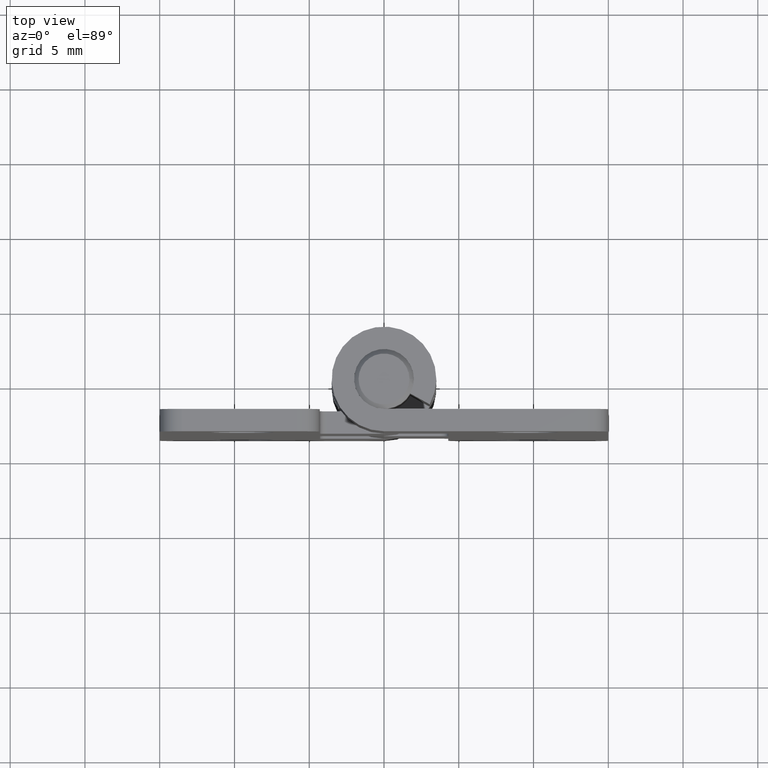
[diagram: clean part render]
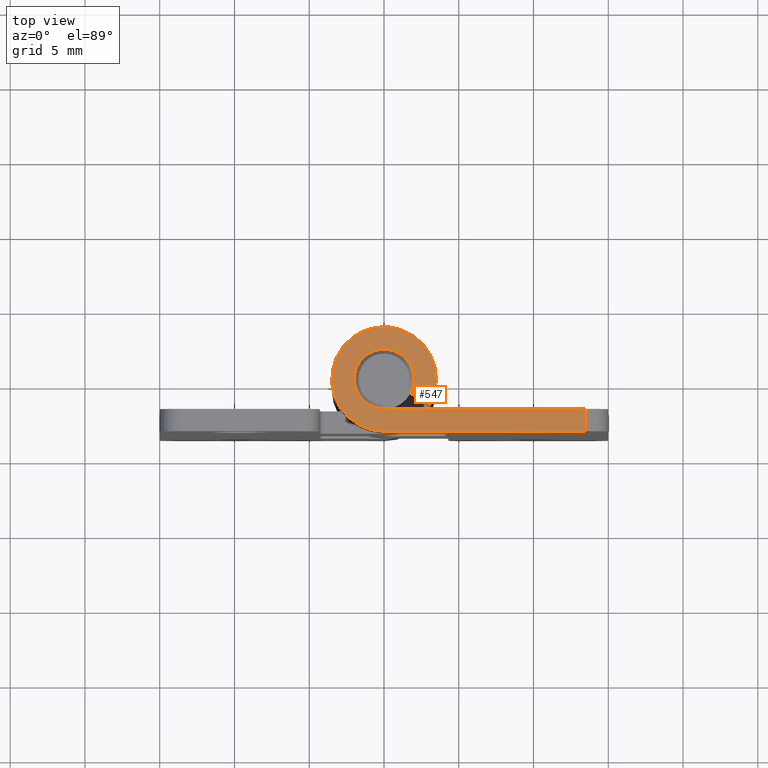
[diagram: same view with one face highlighted and labeled with its STEP entity id]
A machine part, top view. The second image highlights one B-rep face of the part: STEP entity #547.
In plain terms, the highlighted planar face has unit normal (0, 0, 1).
Its self-contained STEP definition (entity closure, byte-faithful):
#63=PLANE('',#607);
#91=FACE_OUTER_BOUND('',#130,.T.);
#130=EDGE_LOOP('',(#495,#496,#497,#498,#499,#500));
#162=LINE('',#870,#202);
#164=LINE('',#882,#204);
#173=LINE('',#910,#213);
#177=LINE('',#931,#217);
#202=VECTOR('',#689,13.5);
#204=VECTOR('',#701,1.5);
#213=VECTOR('',#732,1.5);
#217=VECTOR('',#762,13.5);
#239=CIRCLE('',#591,3.5);
#240=CIRCLE('',#595,2.);
#276=VERTEX_POINT('',#867);
#277=VERTEX_POINT('',#869);
#282=VERTEX_POINT('',#881);
#288=VERTEX_POINT('',#903);
#289=VERTEX_POINT('',#905);
#290=VERTEX_POINT('',#909);
#334=EDGE_CURVE('',#277,#276,#162,.T.);
#340=EDGE_CURVE('',#277,#282,#164,.T.);
#352=EDGE_CURVE('',#289,#288,#239,.T.);
#354=EDGE_CURVE('',#290,#289,#173,.T.);
#358=EDGE_CURVE('',#276,#290,#240,.T.);
#363=EDGE_CURVE('',#288,#282,#177,.T.);
#495=ORIENTED_EDGE('',*,*,#340,.F.);
#496=ORIENTED_EDGE('',*,*,#334,.T.);
#497=ORIENTED_EDGE('',*,*,#358,.T.);
#498=ORIENTED_EDGE('',*,*,#354,.T.);
#499=ORIENTED_EDGE('',*,*,#352,.T.);
#500=ORIENTED_EDGE('',*,*,#363,.T.);
#547=ADVANCED_FACE('',(#91),#63,.T.);
#591=AXIS2_PLACEMENT_3D('',#906,#727,#728);
#595=AXIS2_PLACEMENT_3D('',#916,#740,#741);
#607=AXIS2_PLACEMENT_3D('',#934,#766,#767);
#689=DIRECTION('',(-1.,-2.40548322002117E-16,0.));
#701=DIRECTION('',(0.,-1.,0.));
#727=DIRECTION('center_axis',(0.,0.,1.));
#728=DIRECTION('ref_axis',(0.87411763090162,-0.485714285714286,0.));
#732=DIRECTION('',(0.87411763090162,-0.485714285714286,0.));
#740=DIRECTION('center_axis',(0.,0.,-1.));
#741=DIRECTION('ref_axis',(-0.87411763090162,0.485714285714286,0.));
#762=DIRECTION('',(1.,1.48029736616688E-16,0.));
#766=DIRECTION('center_axis',(0.,0.,1.));
#767=DIRECTION('ref_axis',(1.,0.,0.));
#867=CARTESIAN_POINT('',(5.55111512312578E-16,-2.,19.));
#869=CARTESIAN_POINT('',(13.5,-2.,19.));
#870=CARTESIAN_POINT('',(15.,-2.,19.));
#881=CARTESIAN_POINT('',(13.5,-3.5,19.));
#882=CARTESIAN_POINT('',(13.5,-1.75,19.));
#903=CARTESIAN_POINT('',(5.55111512312578E-16,-3.5,19.));
#905=CARTESIAN_POINT('',(3.05941170815567,-1.7,19.));
#906=CARTESIAN_POINT('Origin',(0.,0.,19.));
#909=CARTESIAN_POINT('',(1.74823526180324,-0.971428571428572,19.));
#910=CARTESIAN_POINT('',(1.74823526180324,-0.971428571428572,19.));
#916=CARTESIAN_POINT('Origin',(0.,0.,19.));
#931=CARTESIAN_POINT('',(0.,-3.5,19.));
#934=CARTESIAN_POINT('Origin',(5.75,0.,19.));